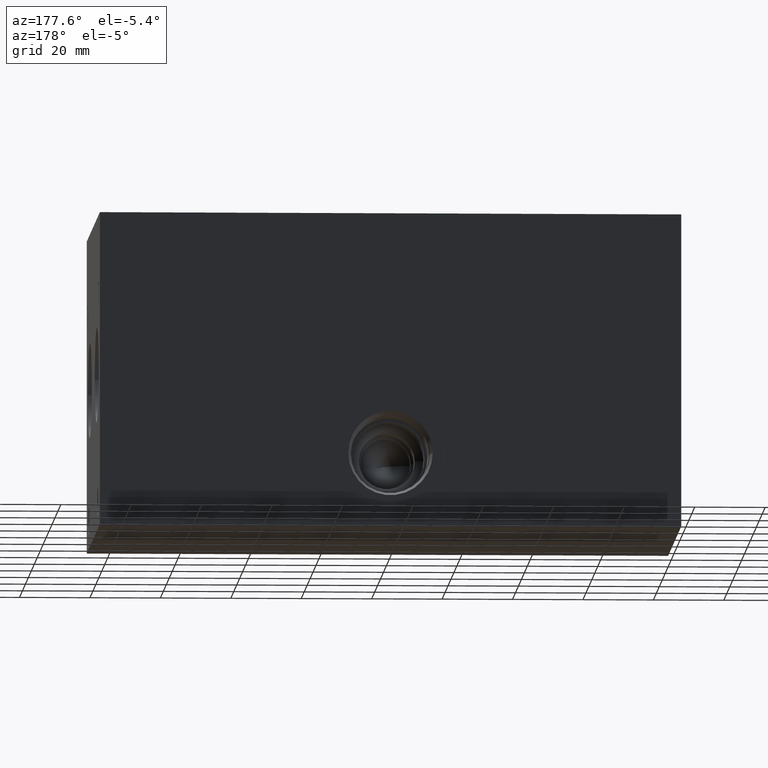
[diagram: clean part render]
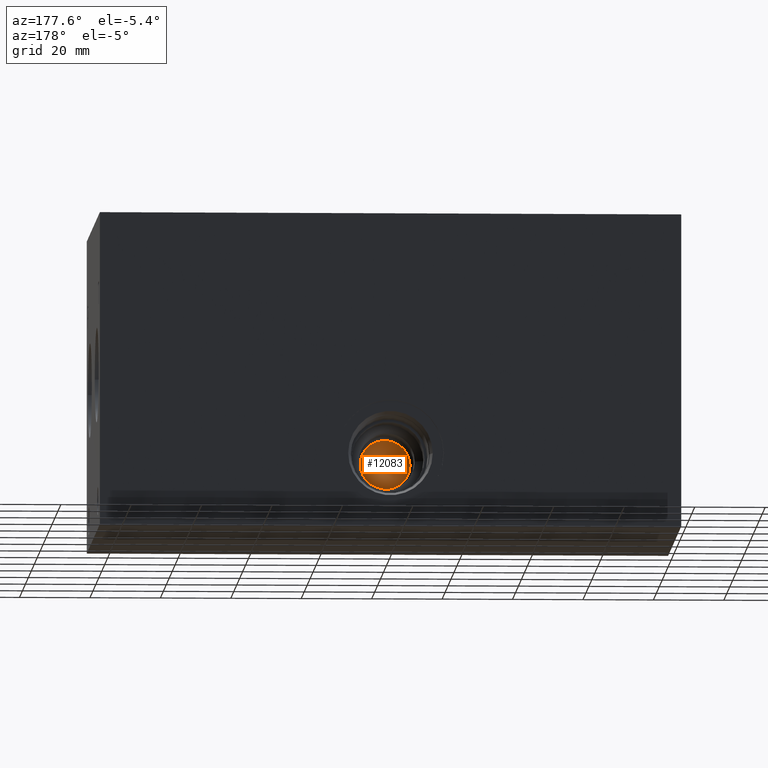
[diagram: same view with one face highlighted and labeled with its STEP entity id]
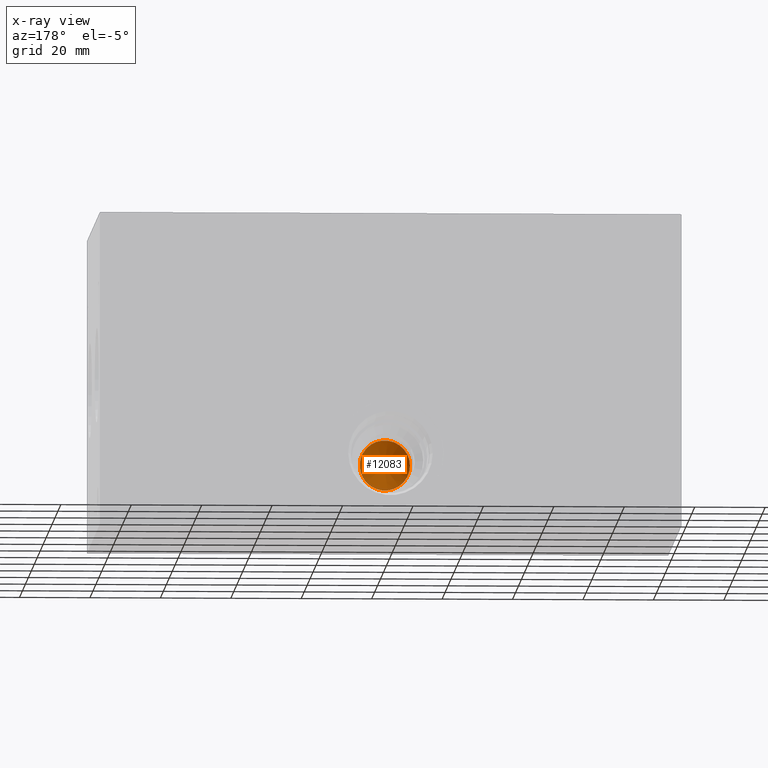
[diagram: x-ray of the same camera — body ghosted, the highlighted face saturated]
A machine part, auxiliary view. The second image highlights one B-rep face of the part: STEP entity #12083.
The next image is the same camera in x-ray: the body ghosted, the highlighted face saturated — about 0% of this face is hidden behind the body in this view.
In plain terms, the highlighted conical surface has half-angle 60 deg.
Its self-contained STEP definition (entity closure, byte-faithful):
#18=CONICAL_SURFACE('',#12599,7.14499999999999,1.04719754840022);
#154=CIRCLE('',#12597,7.14499999999999);
#155=CIRCLE('',#12598,7.14499999999999);
#1444=FACE_OUTER_BOUND('',#2129,.T.);
#2129=EDGE_LOOP('',(#10190,#10191,#10192,#10193));
#3319=LINE('',#20483,#4446);
#4446=VECTOR('',#14698,7.14499999999999);
#5500=VERTEX_POINT('',#20476);
#5501=VERTEX_POINT('',#20478);
#5502=VERTEX_POINT('',#20482);
#7126=EDGE_CURVE('',#5500,#5501,#154,.T.);
#7127=EDGE_CURVE('',#5501,#5500,#155,.T.);
#7128=EDGE_CURVE('',#5500,#5502,#3319,.T.);
#10190=ORIENTED_EDGE('',*,*,#7127,.F.);
#10191=ORIENTED_EDGE('',*,*,#7126,.F.);
#10192=ORIENTED_EDGE('',*,*,#7128,.T.);
#10193=ORIENTED_EDGE('',*,*,#7128,.F.);
#12083=ADVANCED_FACE('',(#1444),#18,.F.);
#12597=AXIS2_PLACEMENT_3D('',#20479,#14692,#14693);
#12598=AXIS2_PLACEMENT_3D('',#20480,#14694,#14695);
#12599=AXIS2_PLACEMENT_3D('',#20481,#14696,#14697);
#14692=DIRECTION('center_axis',(0.,-1.,0.));
#14693=DIRECTION('ref_axis',(1.,0.,0.));
#14694=DIRECTION('center_axis',(0.,-1.,0.));
#14695=DIRECTION('ref_axis',(1.,0.,0.));
#14696=DIRECTION('center_axis',(0.,1.,0.));
#14697=DIRECTION('ref_axis',(1.,0.,0.));
#14698=DIRECTION('',(0.866025402386251,-0.500000002421731,1.06057523701262E-16));
#20476=CARTESIAN_POINT('',(75.405,50.2000654,20.6502));
#20478=CARTESIAN_POINT('',(89.695,50.2000654,20.6502));
#20479=CARTESIAN_POINT('Origin',(82.55,50.2000654,20.6502));
#20480=CARTESIAN_POINT('Origin',(82.55,50.2000654,20.6502));
#20481=CARTESIAN_POINT('Origin',(82.55,50.2000654,20.6502));
#20482=CARTESIAN_POINT('',(82.55,46.0748977,20.6502));
#20483=CARTESIAN_POINT('',(75.405,50.2000654,20.6502));